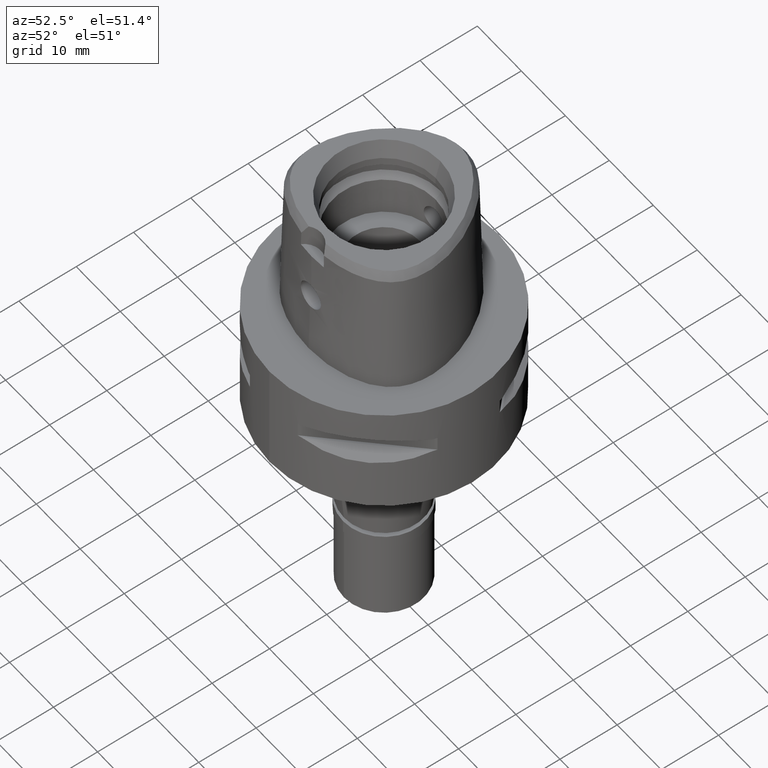
[diagram: clean part render]
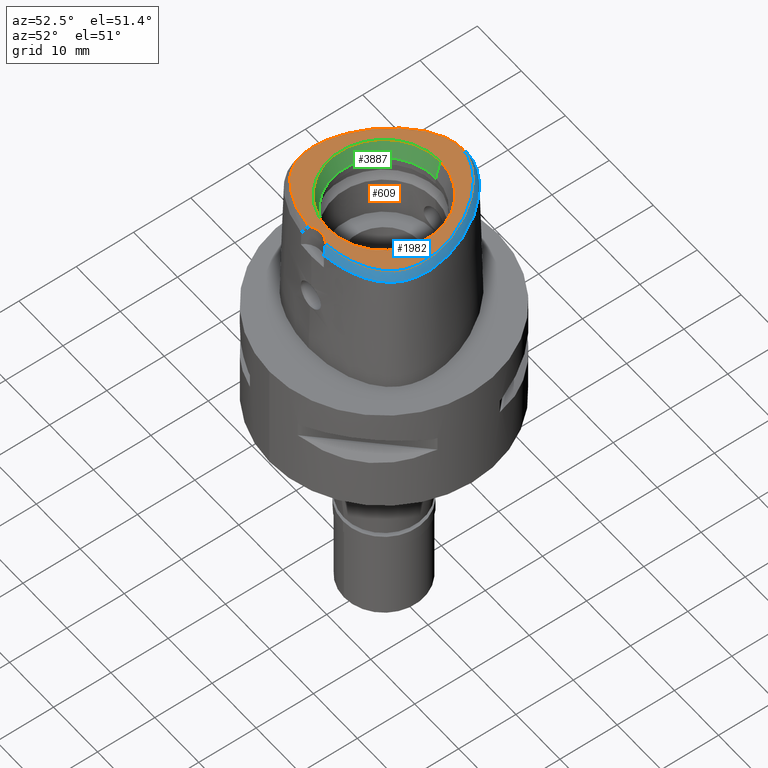
[diagram: same view with three faces highlighted in distinct colors, each labeled with its STEP entity id]
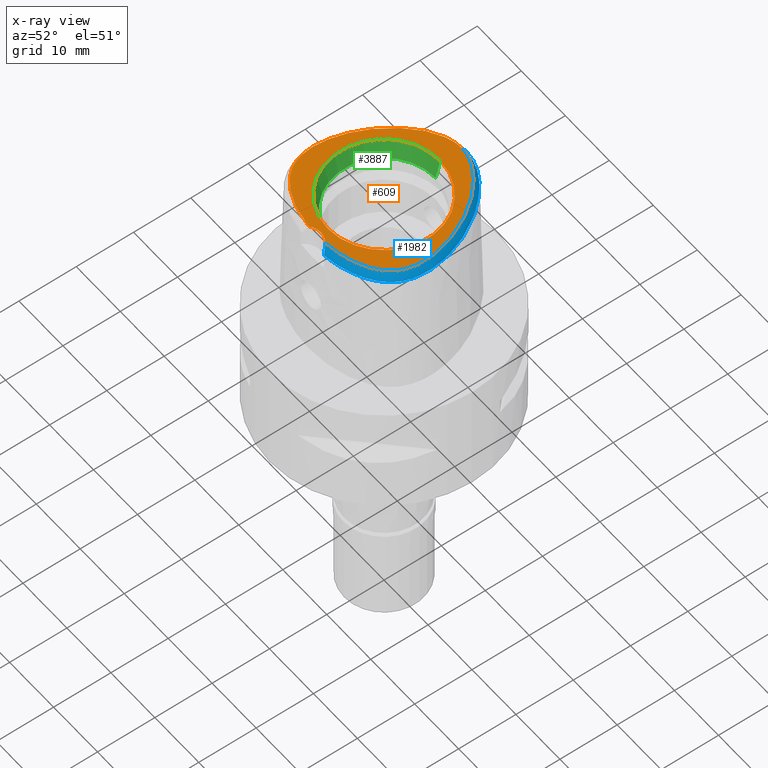
[diagram: x-ray of the same camera — body ghosted, the three highlighted faces saturated]
A machine part, auxiliary view with three faces highlighted in distinct colors.
The next image is the same camera in x-ray (body ghosted, the three faces saturated) — at least one of them is partly hidden behind the body in this view.
Their STEP definitions:

[orange] entity #609 — the highlighted planar face has unit normal (0, 0, 1).
#46 = CARTESIAN_POINT ( 'NONE',  ( -12.25469206170605219, -5.716132091641457968, 24.00000000000688871 ) ) ;
#50 = VERTEX_POINT ( 'NONE', #1170 ) ;
#54 = EDGE_CURVE ( 'NONE', #50, #2611, #158, .T. ) ;
#66 = CARTESIAN_POINT ( 'NONE',  ( -5.772139147997672026, -10.95484250004509086, 23.99999999999592859 ) ) ;
#113 = CARTESIAN_POINT ( 'NONE',  ( -12.61525294082025894, -0.8186751790038890864, 23.99999999999378275 ) ) ;
#132 = CARTESIAN_POINT ( 'NONE',  ( 12.61485888653373877, -0.8159399761863139755, 24.00000000000508393 ) ) ;
#157 = CARTESIAN_POINT ( 'NONE',  ( 5.360995407852204409, 11.51670950506676583, 23.99999999999968381 ) ) ;
#158 = CIRCLE ( 'NONE', #1201, 2.999999999999998668 ) ;
#181 = CARTESIAN_POINT ( 'NONE',  ( 0.4912642629215475121, 13.55865141013133268, 23.99999999999301536 ) ) ;
#198 = CARTESIAN_POINT ( 'NONE',  ( 11.47056307656757923, 3.308874133465101064, 23.99999999999456790 ) ) ;
#214 = EDGE_LOOP ( 'NONE', ( #1223, #2651 ) ) ;
#281 = EDGE_LOOP ( 'NONE', ( #847, #4506, #3943 ) ) ;
#293 = DIRECTION ( 'NONE',  ( 0.0000000000000000000, 1.000000000000000000, 0.0000000000000000000 ) ) ;
#351 = CARTESIAN_POINT ( 'NONE',  ( -12.56273685367470350, -4.606827092195338480, 24.00000000000433431 ) ) ;
#395 = CARTESIAN_POINT ( 'NONE',  ( -2.090687641573861111, -11.66928185012599073, 23.99999999999905498 ) ) ;
#419 = CARTESIAN_POINT ( 'NONE',  ( -9.587006019868628215, -9.122502708652755032, 24.00000000000070699 ) ) ;
#463 = CARTESIAN_POINT ( 'NONE',  ( 12.44798655948650001, 0.1365840453711558711, 23.99999999999815614 ) ) ;
#489 = CARTESIAN_POINT ( 'NONE',  ( 12.73107502715031281, -3.278999632794468599, 24.00000000000379430 ) ) ;
#500 = VERTEX_POINT ( 'NONE', #3601 ) ;
#508 = CARTESIAN_POINT ( 'NONE',  ( -9.086067383146117393, 7.628776179868300922, 24.00000000000251532 ) ) ;
#527 = CARTESIAN_POINT ( 'NONE',  ( -12.20504609755509051, 1.147983555867035266, 23.99999999999583977 ) ) ;
#551 = CARTESIAN_POINT ( 'NONE',  ( 9.085466894419413464, 7.629604351703886067, 24.00000000000038725 ) ) ;
#553 = EDGE_CURVE ( 'NONE', #4564, #500, #4456, .T. ) ;
#609 = ADVANCED_FACE ( 'NONE', ( #2730, #834 ), #2578, .T. ) ;
#639 = CARTESIAN_POINT ( 'NONE',  ( 0.0000000000000000000, 1.499580005555999857E-14, 24.00000000000000000 ) ) ;
#642 = CARTESIAN_POINT ( 'NONE',  ( 6.719766980793232314, -10.63148725729601196, 23.99999999999993250 ) ) ;
#725 = CARTESIAN_POINT ( 'NONE',  ( -2.674008066188253707, -11.60894038318100385, 23.99999999999576517 ) ) ;
#766 = CARTESIAN_POINT ( 'NONE',  ( -4.742193981401064740, -11.23614232520673006, 24.00000000000749623 ) ) ;
#808 = CARTESIAN_POINT ( 'NONE',  ( 3.312825528086638549, 12.76889704495862077, 23.99999999999863221 ) ) ;
#831 = CARTESIAN_POINT ( 'NONE',  ( 10.41037096114558125, 5.527356888183494910, 24.00000000000580158 ) ) ;
#834 = FACE_BOUND ( 'NONE', #214, .T. ) ;
#845 = EDGE_CURVE ( 'NONE', #500, #4564, #1054, .T. ) ;
#847 = ORIENTED_EDGE ( 'NONE', *, *, #1768, .F. ) ;
#857 = CARTESIAN_POINT ( 'NONE',  ( -0.1649659295969297945, 13.57127880779930074, 23.99999999999904077 ) ) ;
#860 = CARTESIAN_POINT ( 'NONE',  ( 0.0000000000000000000, 0.0000000000000000000, 24.00000000000000000 ) ) ;
#878 = CARTESIAN_POINT ( 'NONE',  ( 3.965883677374458571, 12.43068963207649347, 24.00000000000624567 ) ) ;
#902 = CARTESIAN_POINT ( 'NONE',  ( -1.335416903095999949E-10, 13.57127880780999796, 24.00000000000000000 ) ) ;
#943 = DIRECTION ( 'NONE',  ( 0.0000000000000000000, -1.000000000000000000, 0.0000000000000000000 ) ) ;
#1001 = CARTESIAN_POINT ( 'NONE',  ( 10.95628640552038213, -7.895061898323681326, 24.00000000000349232 ) ) ;
#1054 = CIRCLE ( 'NONE', #2026, 9.830642496535999086 ) ;
#1147 = CARTESIAN_POINT ( 'NONE',  ( 0.0000000000000000000, 1.499580005555999857E-14, 24.00000000000000000 ) ) ;
#1165 = CARTESIAN_POINT ( 'NONE',  ( -8.993364728475985004, -9.521626202593669319, 24.00000000000109779 ) ) ;
#1170 = CARTESIAN_POINT ( 'NONE',  ( 1.908900751366000126, -11.68567549349000068, 24.00000000000000000 ) ) ;
#1186 = CARTESIAN_POINT ( 'NONE',  ( -6.094907065610416730, 10.92800604363542760, 24.00000000000135358 ) ) ;
#1201 = AXIS2_PLACEMENT_3D ( 'NONE', #4090, #2650, #1963 ) ;
#1210 = CARTESIAN_POINT ( 'NONE',  ( 12.25557177138587939, -5.713684847254565824, 24.00000000000353140 ) ) ;
#1223 = ORIENTED_EDGE ( 'NONE', *, *, #553, .F. ) ;
#1235 = CARTESIAN_POINT ( 'NONE',  ( 11.29648905054858155, -7.481873590176723710, 24.00000000000389022 ) ) ;
#1252 = CARTESIAN_POINT ( 'NONE',  ( -10.97950574081377439, 4.420048049596443818, 23.99999999999947065 ) ) ;
#1276 = CARTESIAN_POINT ( 'NONE',  ( 1.541313514288089825, 13.39618800248252484, 24.00000000000342482 ) ) ;
#1380 = CARTESIAN_POINT ( 'NONE',  ( 1.908900751366000126, -11.68567549349000068, 24.00000000000000000 ) ) ;
#1523 = CARTESIAN_POINT ( 'NONE',  ( -3.634083631275654813, -11.46763769350052975, 23.99999999999974776 ) ) ;
#1545 = CARTESIAN_POINT ( 'NONE',  ( -8.357232578963559533, 8.586563883649830586, 24.00000000000259703 ) ) ;
#1564 = CARTESIAN_POINT ( 'NONE',  ( 1.005831379202515308, 13.49945263942739437, 23.99999999999974776 ) ) ;
#1590 = CARTESIAN_POINT ( 'NONE',  ( 11.83717647605760170, -6.648420630655469843, 23.99999999999267075 ) ) ;
#1599 = B_SPLINE_CURVE_WITH_KNOTS ( 'NONE', 3,
 ( #3272, #395, #725, #1523, #766, #66, #3974, #2932, #2151, #1165, #419, #3598, #2556, #2131, #2172, #3575, #2575, #1827, #46, #3535, #351, #3315, #1977, #4063, #3037, #113, #2300, #527, #3692, #4416, #1252, #4016, #1613, #508, #1545, #2668, #4452, #1186, #4370, #2234, #3337, #2597, #2623, #1958, #1913, #3295, #2256, #857, #4084 ),
 .UNSPECIFIED., .F., .F.,
 ( 4, 1, 1, 1, 1, 1, 1, 1, 1, 1, 1, 1, 1, 1, 1, 1, 1, 1, 1, 1, 1, 1, 1, 1, 1, 1, 1, 1, 1, 1, 1, 1, 1, 1, 1, 1, 1, 1, 1, 1, 1, 1, 1, 1, 1, 1, 4 ),
 ( 0.0000000000000000000, 0.009873886129200037942, 0.03187668865969994769, 0.05387949119019996846, 0.07588229372080002033, 0.09788509625140007220, 0.1198878987818999819, 0.1418907013124000027, 0.1638935038429000235, 0.1858963063735000754, 0.2078991089039999851, 0.2299019114346000370, 0.2519047139651000577, 0.2739075164956000785, 0.2959103190260999883, 0.3179131215567000401, 0.3399159240872999810, 0.3619187266178000018, 0.3839215291482999115, 0.4059243316788000433, 0.4279271342093999841, 0.4499299367398998939, 0.4719327392704999458, 0.4939355418009000465, 0.5159383443314999873, 0.5379411468621000392, 0.5599439493925999489, 0.5819467519232000008, 0.6039495544535999905, 0.6259523569842000423, 0.6479551595146999521, 0.6699579620453000040, 0.6919607645757999137, 0.7139635671063000455, 0.7359663696367999552, 0.7579691721674000071, 0.7799719746980000590, 0.8019747772284999687, 0.8239775797591000206, 0.8459803822895000103, 0.8679831848201000621, 0.8899859873505999719, 0.9119887898811600557, 0.9339915924116999335, 0.9559943949422300413, 0.9779971974727700301, 1.000000000000000000 ),
 .UNSPECIFIED. ) ;
#1613 = CARTESIAN_POINT ( 'NONE',  ( -9.776246037422039237, 6.601694411330732315, 24.00000000000379430 ) ) ;
#1633 = CARTESIAN_POINT ( 'NONE',  ( 12.42462515087139430, -5.183426978152144038, 24.00000000000119726 ) ) ;
#1754 = CARTESIAN_POINT ( 'NONE',  ( 5.780202704590667651, -10.95235643153773353, 23.99999999999599609 ) ) ;
#1755 = EDGE_CURVE ( 'NONE', #2611, #3103, #1599, .T. ) ;
#1766 = B_SPLINE_CURVE_WITH_KNOTS ( 'NONE', 3,
 ( #902, #3995, #181, #1564, #1276, #1934, #3018, #808, #878, #2322, #157, #2954, #3736, #3715, #4433, #551, #3381, #831, #3646, #198, #2645, #3671, #463, #132, #4042, #1895, #489, #2977, #4394, #1633, #1210, #2280, #1590, #2998, #1235, #1001, #3833, #2389, #3106, #4552, #2711, #1999, #642, #1754, #3806, #4207, #4576, #2689, #1380 ),
 .UNSPECIFIED., .F., .F.,
 ( 4, 1, 1, 1, 1, 1, 1, 1, 1, 1, 1, 1, 1, 1, 1, 1, 1, 1, 1, 1, 1, 1, 1, 1, 1, 1, 1, 1, 1, 1, 1, 1, 1, 1, 1, 1, 1, 1, 1, 1, 1, 1, 1, 1, 1, 1, 4 ),
 ( 0.0000000000000000000, 0.02199885823280001151, 0.04399771645910000029, 0.06599657468529995796, 0.08799543291160005776, 0.1099942911379000465, 0.1319931493642000353, 0.1539920075905000241, 0.1759908658166000617, 0.1979897240429000504, 0.2199885822692000392, 0.2419874404955000280, 0.2639862987218000168, 0.2859851569481000055, 0.3079840151743000742, 0.3299828734006000630, 0.3519817316269000518, 0.3739805898531999295, 0.3959794480795000293, 0.4179783063057000980, 0.4399771645319999758, 0.4619760227582999645, 0.4839748809845999533, 0.5059737392109000531, 0.5279725974371000108, 0.5499714556633999996, 0.5719703138896999883, 0.5939691721160000881, 0.6159680303423000769, 0.6379668885684999236, 0.6599657467947999123, 0.6819646050210999011, 0.7039634632474000009, 0.7259623214736999897, 0.7479611796998999473, 0.7699600379262000471, 0.7919588961525000359, 0.8139577543788000247, 0.8359566126051000134, 0.8579554708314000022, 0.8799543290575000398, 0.9019531872838499886, 0.9239520455101499774, 0.9459509037364199902, 0.9679497619626999949, 0.9899486201889799997, 1.000000000000000000 ),
 .UNSPECIFIED. ) ;
#1768 = EDGE_CURVE ( 'NONE', #3103, #50, #1766, .T. ) ;
#1798 = CARTESIAN_POINT ( 'NONE',  ( 0.0000000000000000000, -9.830642496535999086, 24.00000000000000000 ) ) ;
#1827 = CARTESIAN_POINT ( 'NONE',  ( -12.05760136209954325, -6.203690849628769044, 24.00000000000527578 ) ) ;
#1895 = CARTESIAN_POINT ( 'NONE',  ( 12.74858362814866197, -2.523908814685983160, 24.00000000000532552 ) ) ;
#1913 = CARTESIAN_POINT ( 'NONE',  ( -1.540168727110680091, 13.39645525874533760, 24.00000000000214939 ) ) ;
#1934 = CARTESIAN_POINT ( 'NONE',  ( 2.103367809293152035, 13.24394973621633831, 23.99999999999456790 ) ) ;
#1958 = CARTESIAN_POINT ( 'NONE',  ( -2.102339319506436155, 13.24427330329874586, 23.99999999999674571 ) ) ;
#1963 = DIRECTION ( 'NONE',  ( 0.6363002504554283734, 0.7714415021700344877, 0.0000000000000000000 ) ) ;
#1977 = CARTESIAN_POINT ( 'NONE',  ( -12.73092184452309539, -3.281714902708848580, 24.00000000000363443 ) ) ;
#1999 = CARTESIAN_POINT ( 'NONE',  ( 7.567267065260981695, -10.28066430934878994, 24.00000000000249045 ) ) ;
#2026 = AXIS2_PLACEMENT_3D ( 'NONE', #639, #3453, #293 ) ;
#2131 = CARTESIAN_POINT ( 'NONE',  ( -10.95406941133564516, -7.897563445518309244, 24.00000000000066080 ) ) ;
#2151 = CARTESIAN_POINT ( 'NONE',  ( -8.320010339569924085, -9.910347637803310406, 24.00000000000452260 ) ) ;
#2172 = CARTESIAN_POINT ( 'NONE',  ( -11.29465612496564297, -7.484286614359523249, 24.00000000001034905 ) ) ;
#2234 = CARTESIAN_POINT ( 'NONE',  ( -4.649494456246800134, 12.01569862248405407, 23.99999999999809219 ) ) ;
#2238 = AXIS2_PLACEMENT_3D ( 'NONE', #1147, #3977, #943 ) ;
#2256 = CARTESIAN_POINT ( 'NONE',  ( -0.4900182128078075516, 13.55873082895754322, 24.00000000000426681 ) ) ;
#2280 = CARTESIAN_POINT ( 'NONE',  ( 12.05866527356511497, -6.201315129638308221, 23.99999999999498002 ) ) ;
#2300 = CARTESIAN_POINT ( 'NONE',  ( -12.44854562273085108, 0.1339138360837262842, 24.00000000000540012 ) ) ;
#2322 = CARTESIAN_POINT ( 'NONE',  ( 4.650015056713551864, 12.01535282295618146, 24.00000000000147793 ) ) ;
#2389 = CARTESIAN_POINT ( 'NONE',  ( 10.11006658375183598, -8.714727269571161727, 23.99999999999679545 ) ) ;
#2556 = CARTESIAN_POINT ( 'NONE',  ( -10.56030324369939244, -8.308636727332295635, 23.99999999999781863 ) ) ;
#2575 = CARTESIAN_POINT ( 'NONE',  ( -11.83593754558896549, -6.650702378112616664, 24.00000000000621014 ) ) ;
#2578 = PLANE ( 'NONE',  #3342 ) ;
#2597 = CARTESIAN_POINT ( 'NONE',  ( -3.312010815207358405, 12.76928825342453244, 23.99999999999596056 ) ) ;
#2611 = VERTEX_POINT ( 'NONE', #4464 ) ;
#2623 = CARTESIAN_POINT ( 'NONE',  ( -2.691801546374842591, 13.03762140635102540, 23.99999999999624478 ) ) ;
#2645 = CARTESIAN_POINT ( 'NONE',  ( 11.87933568351843405, 2.212772766009822867, 24.00000000000173372 ) ) ;
#2650 = DIRECTION ( 'NONE',  ( 0.0000000000000000000, 0.0000000000000000000, 1.000000000000000000 ) ) ;
#2651 = ORIENTED_EDGE ( 'NONE', *, *, #845, .F. ) ;
#2668 = CARTESIAN_POINT ( 'NONE',  ( -7.606300872726320605, 9.460291049260103335, 23.99999999999472777 ) ) ;
#2689 = CARTESIAN_POINT ( 'NONE',  ( 2.094511630441583172, -11.66893426577622073, 24.00000000000084555 ) ) ;
#2711 = CARTESIAN_POINT ( 'NONE',  ( 8.325294977167583710, -9.907519125940991600, 23.99999999999488054 ) ) ;
#2730 = FACE_OUTER_BOUND ( 'NONE', #281, .T. ) ;
#2932 = CARTESIAN_POINT ( 'NONE',  ( -7.561120467872155082, -10.28345142432355352, 23.99999999999708322 ) ) ;
#2935 = DIRECTION ( 'NONE',  ( 1.000000000000000000, 0.0000000000000000000, 0.0000000000000000000 ) ) ;
#2954 = CARTESIAN_POINT ( 'NONE',  ( 6.095079845024132581, 10.92785127077909735, 23.99999999999823785 ) ) ;
#2977 = CARTESIAN_POINT ( 'NONE',  ( 12.66713497291425661, -3.971396687641917556, 24.00000000000486367 ) ) ;
#2998 = CARTESIAN_POINT ( 'NONE',  ( 11.58874808008651947, -7.066197077815871808, 24.00000000000325073 ) ) ;
#3018 = CARTESIAN_POINT ( 'NONE',  ( 2.692731913841892588, 13.03725377846850009, 24.00000000000104450 ) ) ;
#3037 = CARTESIAN_POINT ( 'NONE',  ( -12.71262584673478457, -1.705815288732285495, 23.99999999999750244 ) ) ;
#3103 = VERTEX_POINT ( 'NONE', #3713 ) ;
#3106 = CARTESIAN_POINT ( 'NONE',  ( 9.590814837412285243, -9.119735848213636586, 24.00000000000070344 ) ) ;
#3272 = CARTESIAN_POINT ( 'NONE',  ( -1.908902231482000111, -11.68567671431999955, 24.00000000000000000 ) ) ;
#3295 = CARTESIAN_POINT ( 'NONE',  ( -1.004624940264507771, 13.49964524824662782, 24.00000000000574474 ) ) ;
#3297 = DIRECTION ( 'NONE',  ( 0.0000000000000000000, 0.0000000000000000000, 1.000000000000000000 ) ) ;
#3315 = CARTESIAN_POINT ( 'NONE',  ( -12.66679745937420520, -3.974058027851244734, 24.00000000000279954 ) ) ;
#3337 = CARTESIAN_POINT ( 'NONE',  ( -3.965203405003641546, 12.43107680024012751, 23.99999999999351274 ) ) ;
#3342 = AXIS2_PLACEMENT_3D ( 'NONE', #860, #3297, #2935 ) ;
#3381 = CARTESIAN_POINT ( 'NONE',  ( 9.775510958008945650, 6.602848413447841125, 24.00000000000244427 ) ) ;
#3453 = DIRECTION ( 'NONE',  ( 0.0000000000000000000, 0.0000000000000000000, 1.000000000000000000 ) ) ;
#3535 = CARTESIAN_POINT ( 'NONE',  ( -12.42392521664056204, -5.185948956748933192, 24.00000000000739675 ) ) ;
#3575 = CARTESIAN_POINT ( 'NONE',  ( -11.58726606717233842, -7.068491431885244758, 24.00000000000168399 ) ) ;
#3598 = CARTESIAN_POINT ( 'NONE',  ( -10.10686734005304999, -8.717417447991492097, 24.00000000000500222 ) ) ;
#3601 = CARTESIAN_POINT ( 'NONE',  ( 0.0000000000000000000, 9.830642496535999086, 24.00000000000000000 ) ) ;
#3646 = CARTESIAN_POINT ( 'NONE',  ( 10.97862720533777470, 4.421873472735974531, 23.99999999999942446 ) ) ;
#3671 = CARTESIAN_POINT ( 'NONE',  ( 12.20434663574035028, 1.150526658650571354, 24.00000000000777334 ) ) ;
#3692 = CARTESIAN_POINT ( 'NONE',  ( -11.88013947726292763, 2.210420412499872533, 23.99999999999796785 ) ) ;
#3713 = CARTESIAN_POINT ( 'NONE',  ( -1.335416903095999949E-10, 13.57127880780999796, 24.00000000000000000 ) ) ;
#3715 = CARTESIAN_POINT ( 'NONE',  ( 7.606071530364740596, 9.460533301731311795, 23.99999999999909051 ) ) ;
#3736 = CARTESIAN_POINT ( 'NONE',  ( 6.847466138750022857, 10.24233194362006216, 23.99999999999317168 ) ) ;
#3806 = CARTESIAN_POINT ( 'NONE',  ( 4.751308116302588758, -11.23394664105762608, 24.00000000000338929 ) ) ;
#3833 = CARTESIAN_POINT ( 'NONE',  ( 10.56297693592350306, -8.306035104842905525, 24.00000000000366285 ) ) ;
#3943 = ORIENTED_EDGE ( 'NONE', *, *, #54, .F. ) ;
#3974 = CARTESIAN_POINT ( 'NONE',  ( -6.712679994720578414, -10.63416489130827003, 24.00000000000783018 ) ) ;
#3977 = DIRECTION ( 'NONE',  ( 0.0000000000000000000, 0.0000000000000000000, 1.000000000000000000 ) ) ;
#3995 = CARTESIAN_POINT ( 'NONE',  ( 0.1653041921268242620, 13.57127880781031948, 23.99999999999648637 ) ) ;
#4016 = CARTESIAN_POINT ( 'NONE',  ( -10.41120247049588698, 5.525862884540577724, 24.00000000000906297 ) ) ;
#4042 = CARTESIAN_POINT ( 'NONE',  ( 12.71240944240792459, -1.703055140481163132, 24.00000000000408207 ) ) ;
#4063 = CARTESIAN_POINT ( 'NONE',  ( -12.74861612881395168, -2.526660231389307398, 24.00000000000298428 ) ) ;
#4084 = CARTESIAN_POINT ( 'NONE',  ( -1.335416903095999949E-10, 13.57127880780999796, 24.00000000000000000 ) ) ;
#4090 = CARTESIAN_POINT ( 'NONE',  ( 0.0000000000000000000, -14.00000000000000000, 24.00000000000000000 ) ) ;
#4207 = CARTESIAN_POINT ( 'NONE',  ( 3.643846516944357461, -11.46587366693780297, 24.00000000000275691 ) ) ;
#4370 = CARTESIAN_POINT ( 'NONE',  ( -5.360644550569931610, 11.51697883926483890, 23.99999999999987921 ) ) ;
#4394 = CARTESIAN_POINT ( 'NONE',  ( 12.56325666867672375, -4.604231586668801057, 23.99999999999663558 ) ) ;
#4416 = CARTESIAN_POINT ( 'NONE',  ( -11.47142705079981262, 3.306767418047834362, 24.00000000000386535 ) ) ;
#4433 = CARTESIAN_POINT ( 'NONE',  ( 8.356809247697205123, 8.587076979791648412, 23.99999999999570477 ) ) ;
#4452 = CARTESIAN_POINT ( 'NONE',  ( -6.847495201776887086, 10.24231185838426228, 24.00000000000089884 ) ) ;
#4456 = CIRCLE ( 'NONE', #2238, 9.830642496535999086 ) ;
#4464 = CARTESIAN_POINT ( 'NONE',  ( -1.908902231482000111, -11.68567671431999955, 24.00000000000000000 ) ) ;
#4506 = ORIENTED_EDGE ( 'NONE', *, *, #1755, .F. ) ;
#4552 = CARTESIAN_POINT ( 'NONE',  ( 8.997867597935009343, -9.518809110955531949, 23.99999999999373301 ) ) ;
#4564 = VERTEX_POINT ( 'NONE', #1798 ) ;
#4576 = CARTESIAN_POINT ( 'NONE',  ( 2.682152426755630703, -11.60797119916098907, 24.00000000000557066 ) ) ;

[blue] entity #1982 — the highlighted face is a freeform B-spline surface patch.
#10 = CARTESIAN_POINT ( 'NONE',  ( 0.04820877006133000853, 13.83294564149000117, 23.54148852251000079 ) ) ;
#13 = VECTOR ( 'NONE', #2092, 999.9999999999998863 ) ;
#18 = CARTESIAN_POINT ( 'NONE',  ( 7.802393293557000398, -10.80243599146999856, 22.97916989464999915 ) ) ;
#25 = CARTESIAN_POINT ( 'NONE',  ( -6.443149272929000311E-11, 14.40001989798000182, 22.52071729252999788 ) ) ;
#42 = CARTESIAN_POINT ( 'NONE',  ( 8.297954986811999945, -9.856141940514000055, 24.10380664858999822 ) ) ;
#50 = VERTEX_POINT ( 'NONE', #1170 ) ;
#53 = CARTESIAN_POINT ( 'NONE',  ( -0.2401679345920999797, 13.50979615534999922, 24.10380664461999700 ) ) ;
#60 = CARTESIAN_POINT ( 'NONE',  ( 7.543357432248999572, -10.22760613065999991, 24.10380668019999817 ) ) ;
#61 = EDGE_CURVE ( 'NONE', #3818, #50, #1063, .T. ) ;
#71 = B_SPLINE_SURFACE_WITH_KNOTS ( 'NONE', 3, 3, ( 
 ( #4297, #1490, #2167, #2903 ),
 ( #3530, #693, #2147, #4319 ),
 ( #2526, #3548, #3266, #1093 ),
 ( #1865, #1138, #3243, #3568 ),
 ( #4279, #2882, #3197, #346 ),
 ( #2461, #3593, #1401, #368 ),
 ( #1822, #2809, #413, #4226 ),
 ( #3900, #2487, #388, #1043 ),
 ( #60, #1775, #18, #3222 ),
 ( #42, #1471, #1114, #3941 ),
 ( #2507, #3175, #2551, #759 ),
 ( #3967, #3615, #2125, #1799 ),
 ( #2189, #2835, #3880, #719 ),
 ( #4599, #1421, #4251, #1071 ),
 ( #1448, #782, #2209, #2860 ),
 ( #433, #1951, #4389, #503 ),
 ( #109, #2292, #1204, #2229 ),
 ( #3731, #1889, #456, #2927 ),
 ( #4059, #175, #2640, #1248 ),
 ( #1608, #826, #1179, #522 ),
 ( #3013, #4366, #1909, #4411 ),
 ( #2250, #1585, #3710, #2948 ),
 ( #1228, #1926, #3666, #4429 ),
 ( #2616, #2992, #2970, #3354 ),
 ( #3290, #2591, #1541, #2571 ),
 ( #1516, #874, #2661, #546 ),
 ( #4011, #3331, #4076, #852 ),
 ( #3310, #1558, #4036, #894 ),
 ( #2275, #481, #127, #3688 ),
 ( #3641, #2317, #1972, #83 ),
 ( #150, #4348, #1160, #3988 ),
 ( #803, #2359, #919, #216 ),
 ( #3770, #1680, #3422, #2410 ),
 ( #2683, #939, #4101, #2381 ),
 ( #4446, #1297, #243, #1628 ),
 ( #2725, #2341, #4151, #3798 ),
 ( #3097, #3750, #1014, #1702 ),
 ( #3470, #567, #3123, #2431 ),
 ( #4513, #3845, #4492, #289 ),
 ( #3376, #636, #1653, #1269 ),
 ( #267, #2704, #1992, #3052 ),
 ( #3825, #1344, #1724, #4470 ),
 ( #2751, #590, #660, #4129 ),
 ( #2066, #2018, #4544, #4177 ),
 ( #3075, #1371, #992, #2780 ),
 ( #4201, #1320, #964, #3395 ),
 ( #193, #615, #3030, #2044 ),
 ( #3447, #2851, #2181, #4291 ),
 ( #1395, #10, #1439, #1037 ),
 ( #53, #2159, #2543, #1107 ),
 ( #3932, #1791, #2501, #750 ) ),
 .UNSPECIFIED., .F., .F., .F.,
 ( 4, 1, 1, 1, 1, 1, 1, 1, 1, 1, 1, 1, 1, 1, 1, 1, 1, 1, 1, 1, 1, 1, 1, 1, 1, 1, 1, 1, 1, 1, 1, 1, 1, 1, 1, 1, 1, 1, 1, 1, 1, 1, 1, 1, 1, 1, 1, 1, 4 ),
 ( 4, 4 ),
 ( -0.006801674744683999969, 0.0000000000000000000, 0.01005137981102000033, 0.03205023803730000509, 0.05404909626358000291, 0.07604795448985000872, 0.09804681271614999749, 0.1200456709425000018, 0.1420445291685999978, 0.1640433873949000143, 0.1860422456211999753, 0.2080411038474999919, 0.2300399620737999806, 0.2520388203000999972, 0.2740376785263000103, 0.2960365367525999991, 0.3180353949789000434, 0.3400342532052000322, 0.3620331114315000209, 0.3840319696576999786, 0.4060308278839999674, 0.4280296861103000117, 0.4500285443366000004, 0.4720274025628999892, 0.4940262607891000024, 0.5160251190154000467, 0.5380239772417000355, 0.5600228354680000242, 0.5820216936942999020, 0.6040205519204999707, 0.6260194101468000705, 0.6480182683730999482, 0.6700171265993999370, 0.6920159848256999258, 0.7140148430518999945, 0.7360137012781999832, 0.7580125595044999720, 0.7800114177307999608, 0.8020102759570999496, 0.8240091341833999383, 0.8460079924094999759, 0.8680068506357999647, 0.8900057088620999535, 0.9120045670883999422, 0.9340034253147000420, 0.9560022835408999997, 0.9780011417671999885, 1.000000000000000000, 1.016043917558999921 ),
 ( -0.04824384622916000342, 1.048281461575000018 ),
 .UNSPECIFIED. ) ;
#83 = CARTESIAN_POINT ( 'NONE',  ( 12.71952438193999946, 2.498545572403000126, 22.41685200086000052 ) ) ;
#109 = CARTESIAN_POINT ( 'NONE',  ( 11.53991242569999898, -7.034512199085000361, 24.10380667196000104 ) ) ;
#127 = CARTESIAN_POINT ( 'NONE',  ( 12.75624115001999925, 1.301812515041999907, 22.97917271960000107 ) ) ;
#132 = CARTESIAN_POINT ( 'NONE',  ( 12.61485888653373877, -0.8159399761863139755, 24.00000000000508393 ) ) ;
#133 = EDGE_CURVE ( 'NONE', #1671, #3818, #1739, .T. ) ;
#150 = CARTESIAN_POINT ( 'NONE',  ( 11.41668292077999958, 3.286898103653999925, 24.10380665311999948 ) ) ;
#157 = CARTESIAN_POINT ( 'NONE',  ( 5.360995407852204409, 11.51670950506676583, 23.99999999999968381 ) ) ;
#175 = CARTESIAN_POINT ( 'NONE',  ( 12.29336496760999964, -6.306328610841999804, 23.54148845845000082 ) ) ;
#181 = CARTESIAN_POINT ( 'NONE',  ( 0.4912642629215475121, 13.55865141013133268, 23.99999999999301536 ) ) ;
#186 = CARTESIAN_POINT ( 'NONE',  ( 6.021703607729348207, 12.22251596526883155, 22.52071729251866472 ) ) ;
#193 = CARTESIAN_POINT ( 'NONE',  ( 0.9969099607098002025, 13.44192922872999851, 24.10380665634999886 ) ) ;
#198 = CARTESIAN_POINT ( 'NONE',  ( 11.47056307656757923, 3.308874133465101064, 23.99999999999456790 ) ) ;
#216 = CARTESIAN_POINT ( 'NONE',  ( 11.77929738709999974, 4.804578920765000483, 22.41685314936999873 ) ) ;
#243 = CARTESIAN_POINT ( 'NONE',  ( 9.550978726814001618, 7.962384174837000117, 22.97917110263000140 ) ) ;
#267 = CARTESIAN_POINT ( 'NONE',  ( 4.618108405146000628, 11.96668082392000088, 24.10380635017000017 ) ) ;
#289 = CARTESIAN_POINT ( 'NONE',  ( 6.672900458700000037, 11.60149884403999998, 22.41685264668999622 ) ) ;
#312 = CARTESIAN_POINT ( 'NONE',  ( 2.568703243657000090, -12.45023755174000080, 22.52071758139999957 ) ) ;
#346 = CARTESIAN_POINT ( 'NONE',  ( 3.798972362086999954, -12.33966360534000017, 22.41685121026000260 ) ) ;
#368 = CARTESIAN_POINT ( 'NONE',  ( 4.958558671968000375, -12.09687887721999999, 22.41685472865999884 ) ) ;
#388 = CARTESIAN_POINT ( 'NONE',  ( 6.920962426225999664, -11.16723744291000031, 22.97917089747999952 ) ) ;
#413 = CARTESIAN_POINT ( 'NONE',  ( 5.947565093551999915, -11.49960034353000005, 22.97917287424999699 ) ) ;
#433 = CARTESIAN_POINT ( 'NONE',  ( 11.25021895501999936, -7.446551200371000157, 24.10380661167999961 ) ) ;
#456 = CARTESIAN_POINT ( 'NONE',  ( 12.34022037472000122, -6.921690256407000419, 22.97917027568999870 ) ) ;
#463 = CARTESIAN_POINT ( 'NONE',  ( 12.44798655948650001, 0.1365840453711558711, 23.99999999999815614 ) ) ;
#481 = CARTESIAN_POINT ( 'NONE',  ( 12.45223323075999922, 1.218477571089000122, 23.54148955626999751 ) ) ;
#489 = CARTESIAN_POINT ( 'NONE',  ( 12.73107502715031281, -3.278999632794468599, 24.00000000000379430 ) ) ;
#503 = CARTESIAN_POINT ( 'NONE',  ( 12.00215107638999967, -8.020572913431001538, 22.41685254687000040 ) ) ;
#522 = CARTESIAN_POINT ( 'NONE',  ( 13.09105878713999971, -6.013838675561999025, 22.41685241313999910 ) ) ;
#546 = CARTESIAN_POINT ( 'NONE',  ( 13.59724579136000067, -1.633541011021000022, 22.41685181760000134 ) ) ;
#551 = CARTESIAN_POINT ( 'NONE',  ( 9.085466894419413464, 7.629604351703886067, 24.00000000000038725 ) ) ;
#567 = CARTESIAN_POINT ( 'NONE',  ( 7.026571960684999674, 10.42668820829999987, 23.54148925036000151 ) ) ;
#590 = CARTESIAN_POINT ( 'NONE',  ( 3.423464888335999934, 13.00095018921999923, 23.54148952887999613 ) ) ;
#615 = CARTESIAN_POINT ( 'NONE',  ( 1.045237078950999932, 13.75353221795000103, 23.54148839274999716 ) ) ;
#636 = CARTESIAN_POINT ( 'NONE',  ( 5.515613716924999466, 11.72205773836999931, 23.54148824645999838 ) ) ;
#642 = CARTESIAN_POINT ( 'NONE',  ( 6.719766980793232314, -10.63148725729601196, 23.99999999999993250 ) ) ;
#660 = CARTESIAN_POINT ( 'NONE',  ( 3.559152910095999989, 13.28553997731000003, 22.97917265862000136 ) ) ;
#683 = ORIENTED_EDGE ( 'NONE', *, *, #133, .F. ) ;
#693 = CARTESIAN_POINT ( 'NONE',  ( 1.677083082565000050, -11.96334249775999936, 23.54148869542000000 ) ) ;
#719 = CARTESIAN_POINT ( 'NONE',  ( 10.67964023304999976, -9.395596309039000005, 22.41685179001999728 ) ) ;
#739 = FACE_OUTER_BOUND ( 'NONE', #1312, .T. ) ;
#750 = CARTESIAN_POINT ( 'NONE',  ( -0.4176209855417000183, 14.44684085215000025, 22.41685168451000010 ) ) ;
#759 = CARTESIAN_POINT ( 'NONE',  ( 9.466742743328000032, -10.27248371121000048, 22.41685260436999982 ) ) ;
#782 = CARTESIAN_POINT ( 'NONE',  ( 11.14831025934999964, -8.066040849978000082, 23.54148846330999945 ) ) ;
#803 = CARTESIAN_POINT ( 'NONE',  ( 10.92612744704000072, 4.396779565184000482, 24.10380657217000078 ) ) ;
#808 = CARTESIAN_POINT ( 'NONE',  ( 3.312825528086638549, 12.76889704495862077, 23.99999999999863221 ) ) ;
#826 = CARTESIAN_POINT ( 'NONE',  ( 12.49754564994999839, -5.800615445374000423, 23.54148855134000229 ) ) ;
#831 = CARTESIAN_POINT ( 'NONE',  ( 10.41037096114558125, 5.527356888183494910, 24.00000000000580158 ) ) ;
#839 = CARTESIAN_POINT ( 'NONE',  ( 3.539803247036451772, 13.67924950644799509, 22.52071729251866472 ) ) ;
#852 = CARTESIAN_POINT ( 'NONE',  ( 13.49332533019999936, -0.6894145417171999579, 22.41685188942999929 ) ) ;
#874 = CARTESIAN_POINT ( 'NONE',  ( 12.96867588247000036, -1.682922447568999891, 23.54148837885999868 ) ) ;
#878 = CARTESIAN_POINT ( 'NONE',  ( 3.965883677374458571, 12.43068963207649347, 24.00000000000624567 ) ) ;
#894 = CARTESIAN_POINT ( 'NONE',  ( 13.31672065965000051, 0.3181336536332999843, 22.41685557561999786 ) ) ;
#902 = CARTESIAN_POINT ( 'NONE',  ( -1.335416903095999949E-10, 13.57127880780999796, 24.00000000000000000 ) ) ;
#919 = CARTESIAN_POINT ( 'NONE',  ( 11.49490740707999947, 4.668645802238000186, 22.97917095696999823 ) ) ;
#926 = EDGE_CURVE ( 'NONE', #1671, #3103, #2069, .T. ) ;
#939 = CARTESIAN_POINT ( 'NONE',  ( 9.992950394592998720, 6.739882385657000263, 23.54148860668000154 ) ) ;
#964 = CARTESIAN_POINT ( 'NONE',  ( 1.671193506498000136, 13.95368723758999963, 22.97917045557999671 ) ) ;
#980 = CARTESIAN_POINT ( 'NONE',  ( 12.06912915025940336, -7.841969071234860422, 22.52071729251866472 ) ) ;
#992 = CARTESIAN_POINT ( 'NONE',  ( 2.273879229704999894, 13.79037052352999915, 22.97916983683000325 ) ) ;
#1001 = CARTESIAN_POINT ( 'NONE',  ( 10.95628640552038213, -7.895061898323681326, 24.00000000000349232 ) ) ;
#1014 = CARTESIAN_POINT ( 'NONE',  ( 8.028977561671998942, 9.846041099709999855, 22.97917085606999876 ) ) ;
#1037 = CARTESIAN_POINT ( 'NONE',  ( 0.05254294053606999720, 14.46346741358999921, 22.41685231359999975 ) ) ;
#1043 = CARTESIAN_POINT ( 'NONE',  ( 7.031789780274999124, -11.46235235157999988, 22.41685305710999998 ) ) ;
#1063 = B_SPLINE_CURVE_WITH_KNOTS ( 'NONE', 3,
 ( #3653, #1642, #1899, #1939 ),
 .UNSPECIFIED., .F., .F.,
 ( 4, 4 ),
 ( 0.0000000000000000000, 1.000000000000000000 ),
 .UNSPECIFIED. ) ;
#1071 = CARTESIAN_POINT ( 'NONE',  ( 11.18044756741000079, -8.943832671057000638, 22.41685191014000011 ) ) ;
#1093 = CARTESIAN_POINT ( 'NONE',  ( 2.052012578994000247, -12.56505872181999983, 22.41685288628000094 ) ) ;
#1107 = CARTESIAN_POINT ( 'NONE',  ( -0.2756471377728999528, 14.45437287903000012, 22.41685204443000146 ) ) ;
#1114 = CARTESIAN_POINT ( 'NONE',  ( 8.594155181368000385, -10.41275999784999939, 22.97917020540999644 ) ) ;
#1138 = CARTESIAN_POINT ( 'NONE',  ( 2.714779859182000266, -11.86284581269999983, 23.54148857590999810 ) ) ;
#1160 = CARTESIAN_POINT ( 'NONE',  ( 12.00041804355000075, 3.524985397064000381, 22.97917016084999986 ) ) ;
#1170 = CARTESIAN_POINT ( 'NONE',  ( 1.908900751366000126, -11.68567549349000068, 24.00000000000000000 ) ) ;
#1179 = CARTESIAN_POINT ( 'NONE',  ( 12.79430221854000038, -5.907227060467999280, 22.97917048223999714 ) ) ;
#1192 = CARTESIAN_POINT ( 'NONE',  ( -6.443149272929000311E-11, 14.40001989798000182, 22.52071729252999788 ) ) ;
#1204 = CARTESIAN_POINT ( 'NONE',  ( 12.06899565295000087, -7.377784713905999325, 22.97916997568999875 ) ) ;
#1210 = CARTESIAN_POINT ( 'NONE',  ( 12.25557177138587939, -5.713684847254565824, 24.00000000000353140 ) ) ;
#1228 = CARTESIAN_POINT ( 'NONE',  ( 12.60938988250999948, -3.964100920721999266, 24.10380662409000152 ) ) ;
#1235 = CARTESIAN_POINT ( 'NONE',  ( 11.29648905054858155, -7.481873590176723710, 24.00000000000389022 ) ) ;
#1248 = CARTESIAN_POINT ( 'NONE',  ( 12.86903599681000010, -6.563905507351999624, 22.41685209240000276 ) ) ;
#1259 = CARTESIAN_POINT ( 'NONE',  ( 13.49620531830296422, -4.288887307216067590, 22.52071729251866472 ) ) ;
#1269 = CARTESIAN_POINT ( 'NONE',  ( 5.894861254845000786, 12.22573555225000064, 22.41685136043999904 ) ) ;
#1276 = CARTESIAN_POINT ( 'NONE',  ( 1.541313514288089825, 13.39618800248252484, 24.00000000000342482 ) ) ;
#1297 = CARTESIAN_POINT ( 'NONE',  ( 9.294554211082001416, 7.779074323068999597, 23.54148882999000136 ) ) ;
#1312 = EDGE_LOOP ( 'NONE', ( #683, #4096, #4069, #4489 ) ) ;
#1320 = CARTESIAN_POINT ( 'NONE',  ( 1.599649859724999734, 13.64659199008999835, 23.54148853937000041 ) ) ;
#1334 = CARTESIAN_POINT ( 'NONE',  ( 6.968888527419462520, -11.49954675151991168, 22.52071729251866472 ) ) ;
#1344 = CARTESIAN_POINT ( 'NONE',  ( 4.092153150427999542, 12.65461003639999937, 23.54149031796999836 ) ) ;
#1371 = CARTESIAN_POINT ( 'NONE',  ( 2.179953994376000015, 13.48937777528999860, 23.54148826144999873 ) ) ;
#1380 = CARTESIAN_POINT ( 'NONE',  ( 1.908900751366000126, -11.68567549349000068, 24.00000000000000000 ) ) ;
#1395 = CARTESIAN_POINT ( 'NONE',  ( 0.04604168482397000273, 13.51768475545000037, 24.10380662696999821 ) ) ;
#1401 = CARTESIAN_POINT ( 'NONE',  ( 4.884945363107999761, -11.79037404289999813, 22.97917197531000255 ) ) ;
#1421 = CARTESIAN_POINT ( 'NONE',  ( 10.74180887558999942, -8.490754134491000471, 23.54148840567000178 ) ) ;
#1439 = CARTESIAN_POINT ( 'NONE',  ( 0.05037585529869999940, 14.14820652753999930, 22.97917041806000071 ) ) ;
#1448 = CARTESIAN_POINT ( 'NONE',  ( 10.91281236060999937, -7.856352402213000907, 24.10380664038000020 ) ) ;
#1471 = CARTESIAN_POINT ( 'NONE',  ( 8.446055084090000165, -10.13445096917999955, 23.54148842700000088 ) ) ;
#1490 = CARTESIAN_POINT ( 'NONE',  ( 1.548853169754999870, -11.97257797487000097, 23.54148869078000317 ) ) ;
#1516 = CARTESIAN_POINT ( 'NONE',  ( 12.65439092803000065, -1.707613165842999825, 24.10380665949999823 ) ) ;
#1541 = CARTESIAN_POINT ( 'NONE',  ( 13.32087251513999959, -2.516959696865999963, 22.97917018201999895 ) ) ;
#1558 = CARTESIAN_POINT ( 'NONE',  ( 12.69958946376999975, 0.1891644709602000041, 23.54148946725999991 ) ) ;
#1564 = CARTESIAN_POINT ( 'NONE',  ( 1.005831379202515308, 13.49945263942739437, 23.99999999999974776 ) ) ;
#1573 = CARTESIAN_POINT ( 'NONE',  ( 13.44334616192889875, -0.2854647381888544833, 22.52071729251866472 ) ) ;
#1585 = CARTESIAN_POINT ( 'NONE',  ( 12.81537053781999980, -4.654603733736999871, 23.54148837162000163 ) ) ;
#1590 = CARTESIAN_POINT ( 'NONE',  ( 11.83717647605760170, -6.648420630655469843, 23.99999999999267075 ) ) ;
#1597 = CARTESIAN_POINT ( 'NONE',  ( 1.515894610912724927, 14.29262276006230259, 22.52071729251866472 ) ) ;
#1608 = CARTESIAN_POINT ( 'NONE',  ( 12.20078908134999907, -5.694003830279999789, 24.10380662044999767 ) ) ;
#1618 = CARTESIAN_POINT ( 'NONE',  ( 11.01301037806751282, 6.358384389067616382, 22.52071729251866472 ) ) ;
#1628 = CARTESIAN_POINT ( 'NONE',  ( 9.807403242546000044, 8.145694026604999749, 22.41685337526000055 ) ) ;
#1633 = CARTESIAN_POINT ( 'NONE',  ( 12.42462515087139430, -5.183426978152144038, 24.00000000000119726 ) ) ;
#1642 = CARTESIAN_POINT ( 'NONE',  ( 2.377474434236204637, -12.13327925688264486, 23.12252361343954021 ) ) ;
#1653 = CARTESIAN_POINT ( 'NONE',  ( 5.705237485885000126, 11.97389664531000086, 22.97916980345000226 ) ) ;
#1671 = VERTEX_POINT ( 'NONE', #25 ) ;
#1680 = CARTESIAN_POINT ( 'NONE',  ( 10.63541949172000045, 5.651499117493000490, 23.54148841531000258 ) ) ;
#1702 = CARTESIAN_POINT ( 'NONE',  ( 8.261932916899001000, 10.05839585318000040, 22.41685299289000000 ) ) ;
#1724 = CARTESIAN_POINT ( 'NONE',  ( 4.247009929866000455, 12.92922583880999987, 22.97917441543999928 ) ) ;
#1739 = B_SPLINE_CURVE_WITH_KNOTS ( 'NONE', 3,
 ( #1192, #3368, #1597, #839, #186, #2263, #1618, #3021, #1573, #4437, #1259, #4166, #4119, #2352, #980, #2369, #3762, #2718, #1334, #2397, #3785, #2696 ),
 .UNSPECIFIED., .F., .F.,
 ( 4, 1, 1, 1, 1, 1, 1, 1, 1, 1, 1, 1, 1, 1, 1, 1, 1, 1, 1, 4 ),
 ( 0.0000000000000000000, 0.04407253041122565634, 0.08814506081991275999, 0.1762901216374986035, 0.2644351824549786012, 0.3525802432724586266, 0.4407253040901502605, 0.5288703649076302860, 0.5729428953164231730, 0.6170154257251103669, 0.6610879561339031429, 0.6831242213381938377, 0.7051604865426960300, 0.7271967517469868358, 0.7492330169513832239, 0.7933055473601759999, 0.8373780777689689980, 0.8814506081776560809, 0.9695956689951890084, 1.000000000000000000 ),
 .UNSPECIFIED. ) ;
#1754 = CARTESIAN_POINT ( 'NONE',  ( 5.780202704590667651, -10.95235643153773353, 23.99999999999599609 ) ) ;
#1766 = B_SPLINE_CURVE_WITH_KNOTS ( 'NONE', 3,
 ( #902, #3995, #181, #1564, #1276, #1934, #3018, #808, #878, #2322, #157, #2954, #3736, #3715, #4433, #551, #3381, #831, #3646, #198, #2645, #3671, #463, #132, #4042, #1895, #489, #2977, #4394, #1633, #1210, #2280, #1590, #2998, #1235, #1001, #3833, #2389, #3106, #4552, #2711, #1999, #642, #1754, #3806, #4207, #4576, #2689, #1380 ),
 .UNSPECIFIED., .F., .F.,
 ( 4, 1, 1, 1, 1, 1, 1, 1, 1, 1, 1, 1, 1, 1, 1, 1, 1, 1, 1, 1, 1, 1, 1, 1, 1, 1, 1, 1, 1, 1, 1, 1, 1, 1, 1, 1, 1, 1, 1, 1, 1, 1, 1, 1, 1, 1, 4 ),
 ( 0.0000000000000000000, 0.02199885823280001151, 0.04399771645910000029, 0.06599657468529995796, 0.08799543291160005776, 0.1099942911379000465, 0.1319931493642000353, 0.1539920075905000241, 0.1759908658166000617, 0.1979897240429000504, 0.2199885822692000392, 0.2419874404955000280, 0.2639862987218000168, 0.2859851569481000055, 0.3079840151743000742, 0.3299828734006000630, 0.3519817316269000518, 0.3739805898531999295, 0.3959794480795000293, 0.4179783063057000980, 0.4399771645319999758, 0.4619760227582999645, 0.4839748809845999533, 0.5059737392109000531, 0.5279725974371000108, 0.5499714556633999996, 0.5719703138896999883, 0.5939691721160000881, 0.6159680303423000769, 0.6379668885684999236, 0.6599657467947999123, 0.6819646050210999011, 0.7039634632474000009, 0.7259623214736999897, 0.7479611796998999473, 0.7699600379262000471, 0.7919588961525000359, 0.8139577543788000247, 0.8359566126051000134, 0.8579554708314000022, 0.8799543290575000398, 0.9019531872838499886, 0.9239520455101499774, 0.9459509037364199902, 0.9679497619626999949, 0.9899486201889799997, 1.000000000000000000 ),
 .UNSPECIFIED. ) ;
#1768 = EDGE_CURVE ( 'NONE', #3103, #50, #1766, .T. ) ;
#1775 = CARTESIAN_POINT ( 'NONE',  ( 7.672875362903000429, -10.51502106105999879, 23.54148828741999822 ) ) ;
#1791 = CARTESIAN_POINT ( 'NONE',  ( -0.3823281868472999667, 13.81781156396000121, 23.54148834032000082 ) ) ;
#1799 = CARTESIAN_POINT ( 'NONE',  ( 10.11066801115999958, -9.839238481401000769, 22.41685279878000259 ) ) ;
#1822 = CARTESIAN_POINT ( 'NONE',  ( 5.763183874623999614, -10.89670802004999928, 24.10380637719999797 ) ) ;
#1865 = CARTESIAN_POINT ( 'NONE',  ( 2.674765602492000127, -11.55026779317999974, 24.10380661488999721 ) ) ;
#1889 = CARTESIAN_POINT ( 'NONE',  ( 12.06312153612999971, -6.771161254626000492, 23.54148845857000083 ) ) ;
#1895 = CARTESIAN_POINT ( 'NONE',  ( 12.74858362814866197, -2.523908814685983160, 24.00000000000532552 ) ) ;
#1899 = CARTESIAN_POINT ( 'NONE',  ( 2.145199990306297710, -11.88057979212691784, 23.61561775297287369 ) ) ;
#1909 = CARTESIAN_POINT ( 'NONE',  ( 12.97626206582999941, -5.336276575751000451, 22.97917015866000057 ) ) ;
#1926 = CARTESIAN_POINT ( 'NONE',  ( 12.92219370559000069, -4.003621921881999945, 23.54148853526999829 ) ) ;
#1934 = CARTESIAN_POINT ( 'NONE',  ( 2.103367809293152035, 13.24394973621633831, 23.99999999999456790 ) ) ;
#1939 = CARTESIAN_POINT ( 'NONE',  ( 1.908900751366000126, -11.68567549349000068, 24.00000000000000000 ) ) ;
#1951 = CARTESIAN_POINT ( 'NONE',  ( 11.50086299547999857, -7.637891771391000617, 23.54148859007999661 ) ) ;
#1972 = CARTESIAN_POINT ( 'NONE',  ( 12.42109782304000021, 2.397041951372000046, 22.97917021640000002 ) ) ;
#1982 = ADVANCED_FACE ( 'NONE', ( #739 ), #71, .F. ) ;
#1992 = CARTESIAN_POINT ( 'NONE',  ( 4.963783596652000085, 12.49399101666999989, 22.97917314013000123 ) ) ;
#1999 = CARTESIAN_POINT ( 'NONE',  ( 7.567267065260981695, -10.28066430934878994, 24.00000000000249045 ) ) ;
#2018 = CARTESIAN_POINT ( 'NONE',  ( 2.786787703086999635, 13.27652101392000006, 23.54148822478000014 ) ) ;
#2044 = CARTESIAN_POINT ( 'NONE',  ( 1.141891315434000020, 14.37673819639999984, 22.41685186556999909 ) ) ;
#2066 = CARTESIAN_POINT ( 'NONE',  ( 2.671437759370000276, 12.98308387024000154, 24.10380669438000112 ) ) ;
#2069 = LINE ( 'NONE', #3126, #13 ) ;
#2092 = DIRECTION ( 'NONE',  ( -4.075833914959980220E-11, -0.4887572544032980359, 0.8724198222576960982 ) ) ;
#2125 = CARTESIAN_POINT ( 'NONE',  ( 9.926021402527000603, -9.583678396689998991, 22.97917073090999907 ) ) ;
#2147 = CARTESIAN_POINT ( 'NONE',  ( 1.701597055761000066, -12.27742144956999937, 22.97917080300999970 ) ) ;
#2159 = CARTESIAN_POINT ( 'NONE',  ( -0.2519943356523999811, 13.82465506323999982, 23.54148844456000234 ) ) ;
#2167 = CARTESIAN_POINT ( 'NONE',  ( 1.571476527001000267, -12.28679303642999976, 22.97917079267000062 ) ) ;
#2181 = CARTESIAN_POINT ( 'NONE',  ( 0.5356684085287999331, 14.12939528245999909, 22.97917004244999717 ) ) ;
#2189 = CARTESIAN_POINT ( 'NONE',  ( 10.07271977154000098, -8.670082844414999101, 24.10380666129999838 ) ) ;
#2209 = CARTESIAN_POINT ( 'NONE',  ( 11.38380815808000079, -8.275729297744000235, 22.97917028624000224 ) ) ;
#2229 = CARTESIAN_POINT ( 'NONE',  ( 12.33353726656999960, -7.549420971316999740, 22.41685162754999894 ) ) ;
#2250 = CARTESIAN_POINT ( 'NONE',  ( 12.50617829299000050, -4.592827373389000378, 24.10380666113000103 ) ) ;
#2263 = CARTESIAN_POINT ( 'NONE',  ( 8.737913805848595672, 9.598635895952249086, 22.52071729251866472 ) ) ;
#2275 = CARTESIAN_POINT ( 'NONE',  ( 12.14822531149000007, 1.135142627135000248, 24.10380639293999749 ) ) ;
#2280 = CARTESIAN_POINT ( 'NONE',  ( 12.05866527356511497, -6.201315129638308221, 23.99999999999498002 ) ) ;
#2292 = CARTESIAN_POINT ( 'NONE',  ( 11.80445403933000037, -7.206148456495999888, 23.54148832382000123 ) ) ;
#2317 = CARTESIAN_POINT ( 'NONE',  ( 12.12267126414000096, 2.295538330340999966, 23.54148843193999951 ) ) ;
#2322 = CARTESIAN_POINT ( 'NONE',  ( 4.650015056713551864, 12.01535282295618146, 24.00000000000147793 ) ) ;
#2341 = CARTESIAN_POINT ( 'NONE',  ( 8.556751776426001044, 8.748581762661000738, 23.54148832749000064 ) ) ;
#2352 = CARTESIAN_POINT ( 'NONE',  ( 12.48241502959972138, -7.206725676734516028, 22.52071729251866472 ) ) ;
#2359 = CARTESIAN_POINT ( 'NONE',  ( 11.21051742705999921, 4.532712683711000778, 23.54148876457000128 ) ) ;
#2369 = CARTESIAN_POINT ( 'NONE',  ( 11.42690036411355514, -8.639965949823794844, 22.52071729251866472 ) ) ;
#2381 = CARTESIAN_POINT ( 'NONE',  ( 10.52628549225999954, 7.075999090616000409, 22.41685260418999803 ) ) ;
#2389 = CARTESIAN_POINT ( 'NONE',  ( 10.11006658375183598, -8.714727269571161727, 23.99999999999679545 ) ) ;
#2397 = CARTESIAN_POINT ( 'NONE',  ( 4.736458210706349981, -12.13940339171319316, 22.52071729251866472 ) ) ;
#2410 = CARTESIAN_POINT ( 'NONE',  ( 11.18741816278999934, 5.955994976357999349, 22.41685194343000020 ) ) ;
#2431 = CARTESIAN_POINT ( 'NONE',  ( 7.465882430469999775, 10.87887695554000089, 22.41685482671000074 ) ) ;
#2461 = CARTESIAN_POINT ( 'NONE',  ( 4.737718745388999508, -11.17736437427999974, 24.10380646862000020 ) ) ;
#2487 = CARTESIAN_POINT ( 'NONE',  ( 6.810135072177000204, -10.87212253424999986, 23.54148873785000262 ) ) ;
#2501 = CARTESIAN_POINT ( 'NONE',  ( -0.3999745861944999925, 14.13232620806000028, 22.97917001241000179 ) ) ;
#2507 = CARTESIAN_POINT ( 'NONE',  ( 8.967123563292998867, -9.469390842047999968, 24.10380660790000107 ) ) ;
#2526 = CARTESIAN_POINT ( 'NONE',  ( 1.964412527901000294, -11.62396143481999999, 24.10380658941999954 ) ) ;
#2543 = CARTESIAN_POINT ( 'NONE',  ( -0.2638207367125999792, 14.13951397113000041, 22.97917024448999612 ) ) ;
#2551 = CARTESIAN_POINT ( 'NONE',  ( 9.300203016650000265, -10.00478608815999948, 22.97917060555000290 ) ) ;
#2571 = CARTESIAN_POINT ( 'NONE',  ( 13.63611455732000088, -2.513131815278999870, 22.41685194753999966 ) ) ;
#2591 = CARTESIAN_POINT ( 'NONE',  ( 13.00563047294999919, -2.520787578453000055, 23.54148841650000179 ) ) ;
#2616 = CARTESIAN_POINT ( 'NONE',  ( 12.67296420301999760, -3.275746525779000162, 24.10380658313999902 ) ) ;
#2640 = CARTESIAN_POINT ( 'NONE',  ( 12.58120048221000076, -6.435117059097000158, 22.97917027541999957 ) ) ;
#2645 = CARTESIAN_POINT ( 'NONE',  ( 11.87933568351843405, 2.212772766009822867, 24.00000000000173372 ) ) ;
#2661 = CARTESIAN_POINT ( 'NONE',  ( 13.28296083691000007, -1.658231729294999957, 22.97917009823000001 ) ) ;
#2683 = CARTESIAN_POINT ( 'NONE',  ( 9.726282845756999862, 6.571824033178001123, 24.10380660791999929 ) ) ;
#2689 = CARTESIAN_POINT ( 'NONE',  ( 2.094511630441583172, -11.66893426577622073, 24.00000000000084555 ) ) ;
#2696 = CARTESIAN_POINT ( 'NONE',  ( 2.568703243657000090, -12.45023755174000080, 22.52071758139999957 ) ) ;
#2704 = CARTESIAN_POINT ( 'NONE',  ( 4.790946000898999912, 12.23033592029000083, 23.54148974514999892 ) ) ;
#2711 = CARTESIAN_POINT ( 'NONE',  ( 8.325294977167583710, -9.907519125940991600, 23.99999999999488054 ) ) ;
#2718 = CARTESIAN_POINT ( 'NONE',  ( 9.075996545096307599, -10.47368666716765695, 22.52071729251866472 ) ) ;
#2725 = CARTESIAN_POINT ( 'NONE',  ( 8.311542421206000952, 8.550512427817000827, 24.10380667111999742 ) ) ;
#2751 = CARTESIAN_POINT ( 'NONE',  ( 3.287776866576999968, 12.71636040113000021, 24.10380639912999712 ) ) ;
#2780 = CARTESIAN_POINT ( 'NONE',  ( 2.367804465033000128, 14.09136327177000148, 22.41685141221999800 ) ) ;
#2809 = CARTESIAN_POINT ( 'NONE',  ( 5.855374484087999321, -11.19815418179000055, 23.54148962573000148 ) ) ;
#2835 = CARTESIAN_POINT ( 'NONE',  ( 10.27502659205000057, -8.911920665955998189, 23.54148837086999890 ) ) ;
#2851 = CARTESIAN_POINT ( 'NONE',  ( 0.5112086402939000074, 13.81500430271999846, 23.54148835379999838 ) ) ;
#2860 = CARTESIAN_POINT ( 'NONE',  ( 11.61930605681999928, -8.485417745509000298, 22.41685210917999882 ) ) ;
#2882 = CARTESIAN_POINT ( 'NONE',  ( 3.688774088176999477, -11.71894084387000134, 23.54148820296999745 ) ) ;
#2903 = CARTESIAN_POINT ( 'NONE',  ( 1.594099884246999999, -12.60100809799000032, 22.41685289456000163 ) ) ;
#2927 = CARTESIAN_POINT ( 'NONE',  ( 12.61731921330000006, -7.072219258187999458, 22.41685209282000102 ) ) ;
#2948 = CARTESIAN_POINT ( 'NONE',  ( 13.43375502748000017, -4.778156454433000633, 22.41685179261000016 ) ) ;
#2954 = CARTESIAN_POINT ( 'NONE',  ( 6.095079845024132581, 10.92785127077909735, 23.99999999999823785 ) ) ;
#2970 = CARTESIAN_POINT ( 'NONE',  ( 13.30253419149999949, -3.310990537146999646, 22.97917084912999997 ) ) ;
#2977 = CARTESIAN_POINT ( 'NONE',  ( 12.66713497291425661, -3.971396687641917556, 24.00000000000486367 ) ) ;
#2992 = CARTESIAN_POINT ( 'NONE',  ( 12.98774919725999943, -3.293368531462999904, 23.54148871614000171 ) ) ;
#2998 = CARTESIAN_POINT ( 'NONE',  ( 11.58874808008651947, -7.066197077815871808, 24.00000000000325073 ) ) ;
#3013 = CARTESIAN_POINT ( 'NONE',  ( 12.36853002151000069, -5.167883932141999814, 24.10380665335000216 ) ) ;
#3018 = CARTESIAN_POINT ( 'NONE',  ( 2.692731913841892588, 13.03725377846850009, 24.00000000000104450 ) ) ;
#3021 = CARTESIAN_POINT ( 'NONE',  ( 12.68166859856200190, 2.767886240359345607, 22.52071729251866472 ) ) ;
#3030 = CARTESIAN_POINT ( 'NONE',  ( 1.093564197192999909, 14.06513520717000176, 22.97917012916000346 ) ) ;
#3052 = CARTESIAN_POINT ( 'NONE',  ( 5.136621192406000347, 12.75764611304999896, 22.41685653510999998 ) ) ;
#3075 = CARTESIAN_POINT ( 'NONE',  ( 2.086028759047999781, 13.18838502704000071, 24.10380668606999777 ) ) ;
#3097 = CARTESIAN_POINT ( 'NONE',  ( 7.563066851217000064, 9.421331592760999740, 24.10380658243000340 ) ) ;
#3103 = VERTEX_POINT ( 'NONE', #3713 ) ;
#3106 = CARTESIAN_POINT ( 'NONE',  ( 9.590814837412285243, -9.119735848213636586, 24.00000000000070344 ) ) ;
#3123 = CARTESIAN_POINT ( 'NONE',  ( 7.246227195577000124, 10.65278258192000216, 22.97917203852999890 ) ) ;
#3126 = CARTESIAN_POINT ( 'NONE',  ( -6.443149272929000311E-11, 14.40001989798000182, 22.52071729252999788 ) ) ;
#3175 = CARTESIAN_POINT ( 'NONE',  ( 9.133663289971000410, -9.737088465101999546, 23.54148860672000154 ) ) ;
#3197 = CARTESIAN_POINT ( 'NONE',  ( 3.743873225131999938, -12.02930222460999943, 22.97916970661000136 ) ) ;
#3222 = CARTESIAN_POINT ( 'NONE',  ( 7.931911224212001343, -11.08985092188000010, 22.41685150187000275 ) ) ;
#3243 = CARTESIAN_POINT ( 'NONE',  ( 2.754794115870999871, -12.17542383222999902, 22.97917053692999900 ) ) ;
#3266 = CARTESIAN_POINT ( 'NONE',  ( 2.022812561963000189, -12.25135962616000107, 22.97917078732999840 ) ) ;
#3290 = CARTESIAN_POINT ( 'NONE',  ( 12.69038843076999967, -2.524615460040000148, 24.10380665098000108 ) ) ;
#3310 = CARTESIAN_POINT ( 'NONE',  ( 12.39102386582999848, 0.1246798796235999984, 24.10380641308000094 ) ) ;
#3331 = CARTESIAN_POINT ( 'NONE',  ( 12.86928047363999994, -0.7792956603109000291, 23.54148839967000129 ) ) ;
#3354 = CARTESIAN_POINT ( 'NONE',  ( 13.61731918574000133, -3.328612542831000276, 22.41685298211999822 ) ) ;
#3368 = CARTESIAN_POINT ( 'NONE',  ( 0.5039711947955511917, 14.40001989752921041, 22.52071729251866472 ) ) ;
#3376 = CARTESIAN_POINT ( 'NONE',  ( 5.325989947965000582, 11.47021883143999865, 24.10380668947000160 ) ) ;
#3381 = CARTESIAN_POINT ( 'NONE',  ( 9.775510958008945650, 6.602848413447841125, 24.00000000000244427 ) ) ;
#3395 = CARTESIAN_POINT ( 'NONE',  ( 1.742737153271000095, 14.26078248508000001, 22.41685237179000367 ) ) ;
#3422 = CARTESIAN_POINT ( 'NONE',  ( 10.91141882724999768, 5.803747046926000408, 22.97917017937000139 ) ) ;
#3447 = CARTESIAN_POINT ( 'NONE',  ( 0.4867488720591000018, 13.50061332296999872, 24.10380666515999692 ) ) ;
#3470 = CARTESIAN_POINT ( 'NONE',  ( 6.806916725793000111, 10.20059383467999936, 24.10380646217999967 ) ) ;
#3530 = CARTESIAN_POINT ( 'NONE',  ( 1.652569109370000122, -11.64926354594999935, 24.10380658783000030 ) ) ;
#3548 = CARTESIAN_POINT ( 'NONE',  ( 1.993612544932000130, -11.93766053048999964, 23.54148868838000297 ) ) ;
#3568 = CARTESIAN_POINT ( 'NONE',  ( 2.794808372561000009, -12.48800185174999910, 22.41685249796000079 ) ) ;
#3593 = CARTESIAN_POINT ( 'NONE',  ( 4.811332054248000922, -11.48386920859000071, 23.54148922197000005 ) ) ;
#3615 = CARTESIAN_POINT ( 'NONE',  ( 9.741374793894999939, -9.328118311978998989, 23.54148866303000176 ) ) ;
#3641 = CARTESIAN_POINT ( 'NONE',  ( 11.82424470523999993, 2.194034709309999887, 24.10380664747999901 ) ) ;
#3646 = CARTESIAN_POINT ( 'NONE',  ( 10.97862720533777470, 4.421873472735974531, 23.99999999999942446 ) ) ;
#3653 = CARTESIAN_POINT ( 'NONE',  ( 2.568703243657000090, -12.45023755174000080, 22.52071758139999957 ) ) ;
#3666 = CARTESIAN_POINT ( 'NONE',  ( 13.23499752867000012, -4.043142923041999737, 22.97917044644999862 ) ) ;
#3671 = CARTESIAN_POINT ( 'NONE',  ( 12.20434663574035028, 1.150526658650571354, 24.00000000000777334 ) ) ;
#3688 = CARTESIAN_POINT ( 'NONE',  ( 13.06024906928999840, 1.385147458996000003, 22.41685588292000020 ) ) ;
#3710 = CARTESIAN_POINT ( 'NONE',  ( 13.12456278264999909, -4.716380094084999364, 22.97917008211999956 ) ) ;
#3713 = CARTESIAN_POINT ( 'NONE',  ( -1.335416903095999949E-10, 13.57127880780999796, 24.00000000000000000 ) ) ;
#3715 = CARTESIAN_POINT ( 'NONE',  ( 7.606071530364740596, 9.460533301731311795, 23.99999999999909051 ) ) ;
#3731 = CARTESIAN_POINT ( 'NONE',  ( 11.78602269753999998, -6.620632252845000565, 24.10380664143999851 ) ) ;
#3736 = CARTESIAN_POINT ( 'NONE',  ( 6.847466138750022857, 10.24233194362006216, 23.99999999999317168 ) ) ;
#3750 = CARTESIAN_POINT ( 'NONE',  ( 7.796022206443999458, 9.633686346235998954, 23.54148871925000108 ) ) ;
#3762 = CARTESIAN_POINT ( 'NONE',  ( 10.46238780066946639, -9.543612998139179737, 22.52071729251866472 ) ) ;
#3770 = CARTESIAN_POINT ( 'NONE',  ( 10.35942015617999878, 5.499251188059999684, 24.10380665125000021 ) ) ;
#3785 = CARTESIAN_POINT ( 'NONE',  ( 3.014424016408626894, -12.39773933397687244, 22.52071729251866472 ) ) ;
#3798 = CARTESIAN_POINT ( 'NONE',  ( 9.047170486866001227, 9.144720432348998784, 22.41685164021999910 ) ) ;
#3806 = CARTESIAN_POINT ( 'NONE',  ( 4.751308116302588758, -11.23394664105762608, 24.00000000000338929 ) ) ;
#3818 = VERTEX_POINT ( 'NONE', #312 ) ;
#3825 = CARTESIAN_POINT ( 'NONE',  ( 3.937296370991000050, 12.37999423397999976, 24.10380622049000010 ) ) ;
#3833 = CARTESIAN_POINT ( 'NONE',  ( 10.56297693592350306, -8.306035104842905525, 24.00000000000366285 ) ) ;
#3845 = CARTESIAN_POINT ( 'NONE',  ( 6.262428340413999983, 11.12295318500000185, 23.54148861898000078 ) ) ;
#3880 = CARTESIAN_POINT ( 'NONE',  ( 10.47733341254999928, -9.153758487497999141, 22.97917008045000031 ) ) ;
#3900 = CARTESIAN_POINT ( 'NONE',  ( 6.699307718128999944, -10.57700762558000029, 24.10380657822000217 ) ) ;
#3932 = CARTESIAN_POINT ( 'NONE',  ( -0.3646817875001999720, 13.50329691986000036, 24.10380666822999984 ) ) ;
#3941 = CARTESIAN_POINT ( 'NONE',  ( 8.742255278647000694, -10.69106902651999924, 22.41685198381000177 ) ) ;
#3967 = CARTESIAN_POINT ( 'NONE',  ( 9.556728185262999276, -9.072558227269000852, 24.10380659516000179 ) ) ;
#3988 = CARTESIAN_POINT ( 'NONE',  ( 12.29228560494000000, 3.644029043768999720, 22.41685191471000138 ) ) ;
#3995 = CARTESIAN_POINT ( 'NONE',  ( 0.1653041921268242620, 13.57127880781031948, 23.99999999999648637 ) ) ;
#4011 = CARTESIAN_POINT ( 'NONE',  ( 12.55725804537000023, -0.8242362196076999936, 24.10380665478999873 ) ) ;
#4036 = CARTESIAN_POINT ( 'NONE',  ( 13.00815506171000102, 0.2536490622968000652, 22.97917252143999889 ) ) ;
#4042 = CARTESIAN_POINT ( 'NONE',  ( 12.71240944240792459, -1.703055140481163132, 24.00000000000408207 ) ) ;
#4059 = CARTESIAN_POINT ( 'NONE',  ( 12.00552945301000030, -6.177540162586000250, 24.10380664147000118 ) ) ;
#4069 = ORIENTED_EDGE ( 'NONE', *, *, #1768, .T. ) ;
#4076 = CARTESIAN_POINT ( 'NONE',  ( 13.18130290192000054, -0.7343551010140000335, 22.97917014455000029 ) ) ;
#4096 = ORIENTED_EDGE ( 'NONE', *, *, #926, .T. ) ;
#4101 = CARTESIAN_POINT ( 'NONE',  ( 10.25961794342999944, 6.907940738136999492, 22.97917060543000289 ) ) ;
#4119 = CARTESIAN_POINT ( 'NONE',  ( 12.82590900890650332, -6.531187914406316963, 22.52071729251866472 ) ) ;
#4129 = CARTESIAN_POINT ( 'NONE',  ( 3.694840931856000488, 13.57012976540000082, 22.41685578836999682 ) ) ;
#4151 = CARTESIAN_POINT ( 'NONE',  ( 8.801961131645999359, 8.946651097505000649, 22.97916998385999676 ) ) ;
#4166 = CARTESIAN_POINT ( 'NONE',  ( 13.19588016803722397, -5.576003003767293187, 22.52071729251866472 ) ) ;
#4177 = CARTESIAN_POINT ( 'NONE',  ( 3.017487590520999685, 13.86339530128000064, 22.41685128558000173 ) ) ;
#4201 = CARTESIAN_POINT ( 'NONE',  ( 1.528106212950999909, 13.33949674258999885, 24.10380662316000056 ) ) ;
#4207 = CARTESIAN_POINT ( 'NONE',  ( 3.643846516944357461, -11.46587366693780297, 24.00000000000275691 ) ) ;
#4226 = CARTESIAN_POINT ( 'NONE',  ( 6.039755703014999533, -11.80104650526999954, 22.41685612278000050 ) ) ;
#4251 = CARTESIAN_POINT ( 'NONE',  ( 10.96112822149999921, -8.717293402773998778, 22.97917015790000050 ) ) ;
#4279 = CARTESIAN_POINT ( 'NONE',  ( 3.633674951221999905, -11.40857946314000060, 24.10380669931999975 ) ) ;
#4291 = CARTESIAN_POINT ( 'NONE',  ( 0.5601281767636999698, 14.44378626220000150, 22.41685173108999862 ) ) ;
#4297 = CARTESIAN_POINT ( 'NONE',  ( 1.526229812508000050, -11.65836291330999863, 24.10380658888000127 ) ) ;
#4319 = CARTESIAN_POINT ( 'NONE',  ( 1.726111028957000082, -12.59150040138000115, 22.41685291059999940 ) ) ;
#4348 = CARTESIAN_POINT ( 'NONE',  ( 11.70855048217000061, 3.405941750359000153, 23.54148840698999834 ) ) ;
#4366 = CARTESIAN_POINT ( 'NONE',  ( 12.67239604367000005, -5.252080253945999644, 23.54148840601000359 ) ) ;
#4389 = CARTESIAN_POINT ( 'NONE',  ( 11.75150703593000046, -7.829232342411001078, 22.97917056846999984 ) ) ;
#4394 = CARTESIAN_POINT ( 'NONE',  ( 12.56325666867672375, -4.604231586668801057, 23.99999999999663558 ) ) ;
#4411 = CARTESIAN_POINT ( 'NONE',  ( 13.28012808799999966, -5.420472897556000369, 22.41685191131000110 ) ) ;
#4429 = CARTESIAN_POINT ( 'NONE',  ( 13.54780135174999955, -4.082663924202999617, 22.41685235762000161 ) ) ;
#4433 = CARTESIAN_POINT ( 'NONE',  ( 8.356809247697205123, 8.587076979791648412, 23.99999999999570477 ) ) ;
#4437 = CARTESIAN_POINT ( 'NONE',  ( 13.60847656765262492, -2.623199557614496857, 22.52071729251866472 ) ) ;
#4446 = CARTESIAN_POINT ( 'NONE',  ( 9.038129695350001214, 7.595764471302000942, 24.10380655735999866 ) ) ;
#4470 = CARTESIAN_POINT ( 'NONE',  ( 4.401866709303000391, 13.20384164123000126, 22.41685851292000109 ) ) ;
#4489 = ORIENTED_EDGE ( 'NONE', *, *, #61, .F. ) ;
#4492 = CARTESIAN_POINT ( 'NONE',  ( 6.467664399557000010, 11.36222601452000092, 22.97917063283000161 ) ) ;
#4513 = CARTESIAN_POINT ( 'NONE',  ( 6.057192281269999867, 10.88368035549000012, 24.10380660512999995 ) ) ;
#4544 = CARTESIAN_POINT ( 'NONE',  ( 2.902137646803999882, 13.56995815760000035, 22.97916975517999916 ) ) ;
#4552 = CARTESIAN_POINT ( 'NONE',  ( 8.997867597935009343, -9.518809110955531949, 23.99999999999373301 ) ) ;
#4576 = CARTESIAN_POINT ( 'NONE',  ( 2.682152426755630703, -11.60797119916098907, 24.00000000000557066 ) ) ;
#4599 = CARTESIAN_POINT ( 'NONE',  ( 10.52248952969000051, -8.264214866208000387, 24.10380665342999862 ) ) ;

[green] entity #3887 — the highlighted conical surface has half-angle 15 deg.
#293 = DIRECTION ( 'NONE',  ( 0.0000000000000000000, 1.000000000000000000, 0.0000000000000000000 ) ) ;
#317 = CARTESIAN_POINT ( 'NONE',  ( 0.0000000000000000000, -9.000000000000000000, 20.89999999999999858 ) ) ;
#500 = VERTEX_POINT ( 'NONE', #3601 ) ;
#626 = CARTESIAN_POINT ( 'NONE',  ( 0.0000000000000000000, 1.499580005555999857E-14, 22.45000000000000284 ) ) ;
#639 = CARTESIAN_POINT ( 'NONE',  ( 0.0000000000000000000, 1.499580005555999857E-14, 24.00000000000000000 ) ) ;
#648 = LINE ( 'NONE', #2077, #1208 ) ;
#667 = DIRECTION ( 'NONE',  ( 0.0000000000000000000, 0.0000000000000000000, 1.000000000000000000 ) ) ;
#845 = EDGE_CURVE ( 'NONE', #500, #4564, #1054, .T. ) ;
#891 = VERTEX_POINT ( 'NONE', #317 ) ;
#1041 = LINE ( 'NONE', #2459, #2258 ) ;
#1050 = DIRECTION ( 'NONE',  ( 0.0000000000000000000, -0.2588190451024934280, 0.9659258262890755287 ) ) ;
#1054 = CIRCLE ( 'NONE', #2026, 9.830642496535999086 ) ;
#1146 = CIRCLE ( 'NONE', #4106, 9.000000000000000000 ) ;
#1208 = VECTOR ( 'NONE', #1050, 1000.000000000000227 ) ;
#1305 = CARTESIAN_POINT ( 'NONE',  ( 0.0000000000000000000, 1.499580005555999857E-14, 20.89999999999999858 ) ) ;
#1569 = EDGE_CURVE ( 'NONE', #891, #4564, #648, .T. ) ;
#1602 = AXIS2_PLACEMENT_3D ( 'NONE', #626, #1713, #3383 ) ;
#1713 = DIRECTION ( 'NONE',  ( 0.0000000000000000000, 0.0000000000000000000, 1.000000000000000000 ) ) ;
#1798 = CARTESIAN_POINT ( 'NONE',  ( 0.0000000000000000000, -9.830642496535999086, 24.00000000000000000 ) ) ;
#2002 = FACE_OUTER_BOUND ( 'NONE', #3011, .T. ) ;
#2026 = AXIS2_PLACEMENT_3D ( 'NONE', #639, #3453, #293 ) ;
#2077 = CARTESIAN_POINT ( 'NONE',  ( 0.0000000000000000000, -9.000000000000000000, 20.89999999999999858 ) ) ;
#2122 = DIRECTION ( 'NONE',  ( 0.0000000000000000000, 0.2588190451024934280, 0.9659258262890755287 ) ) ;
#2186 = ORIENTED_EDGE ( 'NONE', *, *, #1569, .F. ) ;
#2246 = ORIENTED_EDGE ( 'NONE', *, *, #3338, .T. ) ;
#2252 = VERTEX_POINT ( 'NONE', #4404 ) ;
#2258 = VECTOR ( 'NONE', #2122, 1000.000000000000227 ) ;
#2328 = ORIENTED_EDGE ( 'NONE', *, *, #845, .T. ) ;
#2459 = CARTESIAN_POINT ( 'NONE',  ( 0.0000000000000000000, 9.000000000000000000, 20.89999999999999858 ) ) ;
#2557 = CONICAL_SURFACE ( 'NONE', #1602, 9.415321248268000431, 0.2617993877991000029 ) ;
#2869 = EDGE_CURVE ( 'NONE', #2252, #891, #1146, .T. ) ;
#3011 = EDGE_LOOP ( 'NONE', ( #2186, #4425, #2246, #2328 ) ) ;
#3338 = EDGE_CURVE ( 'NONE', #2252, #500, #1041, .T. ) ;
#3383 = DIRECTION ( 'NONE',  ( 0.0000000000000000000, 1.000000000000000000, 0.0000000000000000000 ) ) ;
#3453 = DIRECTION ( 'NONE',  ( 0.0000000000000000000, 0.0000000000000000000, 1.000000000000000000 ) ) ;
#3601 = CARTESIAN_POINT ( 'NONE',  ( 0.0000000000000000000, 9.830642496535999086, 24.00000000000000000 ) ) ;
#3887 = ADVANCED_FACE ( 'NONE', ( #2002 ), #2557, .F. ) ;
#4106 = AXIS2_PLACEMENT_3D ( 'NONE', #1305, #667, #4228 ) ;
#4228 = DIRECTION ( 'NONE',  ( 0.0000000000000000000, 1.000000000000000000, 0.0000000000000000000 ) ) ;
#4404 = CARTESIAN_POINT ( 'NONE',  ( 0.0000000000000000000, 9.000000000000000000, 20.89999999999999858 ) ) ;
#4425 = ORIENTED_EDGE ( 'NONE', *, *, #2869, .F. ) ;
#4564 = VERTEX_POINT ( 'NONE', #1798 ) ;